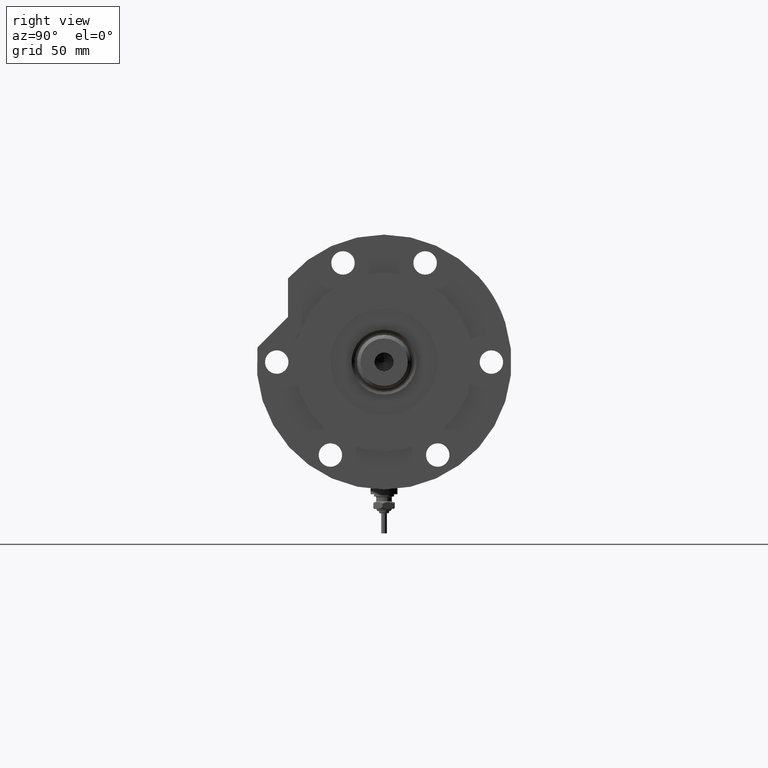
[diagram: clean part render]
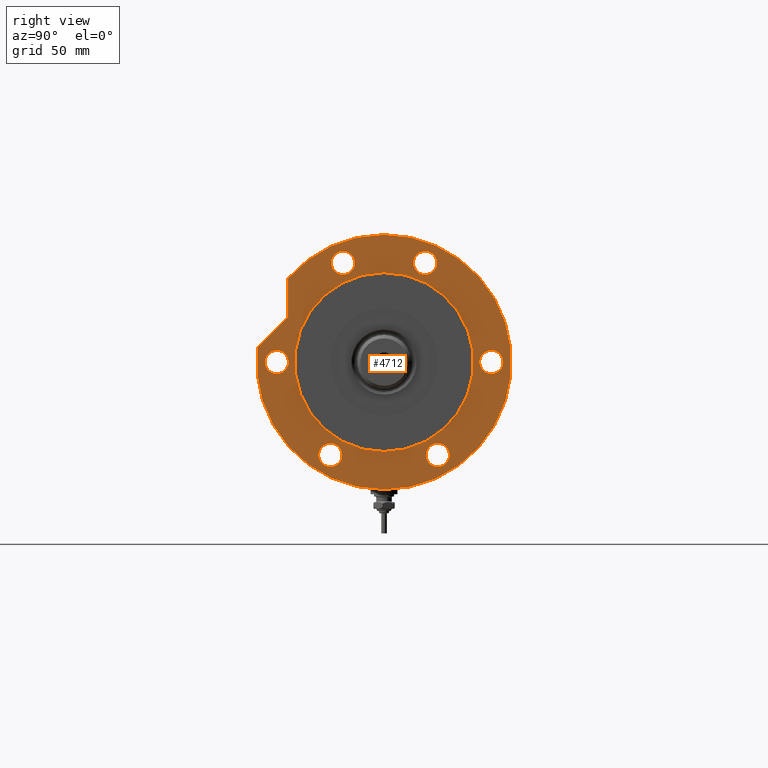
[diagram: same view with one face highlighted and labeled with its STEP entity id]
A machine part, right view. The second image highlights one B-rep face of the part: STEP entity #4712.
In plain terms, the highlighted planar face has unit normal (1, 0, -0).
Its self-contained STEP definition (entity closure, byte-faithful):
#93 = CIRCLE ( 'NONE', #1344, 5.249999999999997335 ) ;
#123 = CARTESIAN_POINT ( 'NONE',  ( 0.000000000000000000, 0.000000000000000000, 19.00000000000000000 ) ) ;
#243 = DIRECTION ( 'NONE',  ( 0.000000000000000000, 0.000000000000000000, 1.000000000000000000 ) ) ;
#247 = CIRCLE ( 'NONE', #4504, 5.249999999999997335 ) ;
#334 = EDGE_LOOP ( 'NONE', ( #5898, #2535 ) ) ;
#403 = VECTOR ( 'NONE', #4332, 999.9999999999998863 ) ;
#474 = DIRECTION ( 'NONE',  ( 1.000000000000000000, 0.000000000000000000, 0.000000000000000000 ) ) ;
#544 = ORIENTED_EDGE ( 'NONE', *, *, #6496, .T. ) ;
#575 = ORIENTED_EDGE ( 'NONE', *, *, #4375, .F. ) ;
#581 = CARTESIAN_POINT ( 'NONE',  ( 0.000000000000000000, 48.00000000000000000, 19.00000000000000000 ) ) ;
#613 = CIRCLE ( 'NONE', #5857, 40.00000000000000000 ) ;
#623 = CARTESIAN_POINT ( 'NONE',  ( 44.34621756054168173, -18.36880475352450048, 19.00000000000000000 ) ) ;
#686 = DIRECTION ( 'NONE',  ( 1.000000000000000000, 0.000000000000000000, 0.000000000000000000 ) ) ;
#712 = EDGE_CURVE ( 'NONE', #4845, #3375, #4877, .T. ) ;
#739 = CIRCLE ( 'NONE', #7449, 5.249999999999997335 ) ;
#752 = DIRECTION ( 'NONE',  ( 0.000000000000000000, 0.000000000000000000, 1.000000000000000000 ) ) ;
#827 = ORIENTED_EDGE ( 'NONE', *, *, #3716, .F. ) ;
#832 = CARTESIAN_POINT ( 'NONE',  ( 49.59621756054168173, -18.36880475352450048, 19.00000000000000000 ) ) ;
#869 = FACE_OUTER_BOUND ( 'NONE', #4097, .T. ) ;
#929 = CARTESIAN_POINT ( 'NONE',  ( 0.000000000000000000, 0.000000000000000000, 19.00000000000000000 ) ) ;
#937 = CARTESIAN_POINT ( 'NONE',  ( 44.34621756054168173, -18.36880475352450048, 19.00000000000000000 ) ) ;
#956 = ORIENTED_EDGE ( 'NONE', *, *, #7112, .F. ) ;
#963 = EDGE_CURVE ( 'NONE', #4517, #6420, #1715, .T. ) ;
#1004 = EDGE_CURVE ( 'NONE', #4122, #4089, #739, .T. ) ;
#1018 = DIRECTION ( 'NONE',  ( 1.000000000000000000, 0.000000000000000000, -0.000000000000000000 ) ) ;
#1041 = DIRECTION ( 'NONE',  ( 0.000000000000000000, 0.000000000000000000, 1.000000000000000000 ) ) ;
#1061 = DIRECTION ( 'NONE',  ( 0.000000000000000000, 0.000000000000000000, 1.000000000000000000 ) ) ;
#1080 = DIRECTION ( 'NONE',  ( 1.000000000000000000, 0.000000000000000000, 0.000000000000000000 ) ) ;
#1082 = EDGE_CURVE ( 'NONE', #6780, #5940, #6309, .T. ) ;
#1089 = DIRECTION ( 'NONE',  ( 1.000000000000000000, 0.000000000000000000, 0.000000000000000000 ) ) ;
#1220 = ORIENTED_EDGE ( 'NONE', *, *, #963, .F. ) ;
#1313 = EDGE_LOOP ( 'NONE', ( #1809, #7241 ) ) ;
#1344 = AXIS2_PLACEMENT_3D ( 'NONE', #1798, #4010, #5921 ) ;
#1412 = CARTESIAN_POINT ( 'NONE',  ( -36.31921938165294961, -24.00000000000018829, 19.00000000000000000 ) ) ;
#1432 = DIRECTION ( 'NONE',  ( 1.000000000000000000, 0.000000000000000000, 0.000000000000000000 ) ) ;
#1471 = ORIENTED_EDGE ( 'NONE', *, *, #1082, .F. ) ;
#1528 = DIRECTION ( 'NONE',  ( 0.000000000000000000, 0.000000000000000000, 1.000000000000000000 ) ) ;
#1540 = ORIENTED_EDGE ( 'NONE', *, *, #3027, .F. ) ;
#1653 = EDGE_CURVE ( 'NONE', #4089, #4122, #5718, .T. ) ;
#1686 = EDGE_CURVE ( 'NONE', #5536, #3425, #93, .T. ) ;
#1715 = CIRCLE ( 'NONE', #3798, 5.249999999999997335 ) ;
#1726 = CARTESIAN_POINT ( 'NONE',  ( 44.34621756054168173, 18.36880475352450048, 19.00000000000000000 ) ) ;
#1798 = CARTESIAN_POINT ( 'NONE',  ( 44.34621756054168173, 18.36880475352450048, 19.00000000000000000 ) ) ;
#1809 = ORIENTED_EDGE ( 'NONE', *, *, #1004, .F. ) ;
#1846 = EDGE_LOOP ( 'NONE', ( #4401, #5758 ) ) ;
#1855 = CIRCLE ( 'NONE', #4518, 5.249999999999998224 ) ;
#1861 = DIRECTION ( 'NONE',  ( 0.000000000000000000, 0.000000000000000000, 1.000000000000000000 ) ) ;
#1878 = CARTESIAN_POINT ( 'NONE',  ( 37.43945616129992970, 42.98007820311755012, 19.00000000000000000 ) ) ;
#1913 = DIRECTION ( 'NONE',  ( 0.000000000000000000, 0.000000000000000000, 1.000000000000000000 ) ) ;
#1985 = CARTESIAN_POINT ( 'NONE',  ( 40.00000000000000000, 4.898587196589413026E-15, 19.00000000000000000 ) ) ;
#2062 = ORIENTED_EDGE ( 'NONE', *, *, #7081, .F. ) ;
#2171 = FACE_BOUND ( 'NONE', #1846, .T. ) ;
#2193 = AXIS2_PLACEMENT_3D ( 'NONE', #3006, #7038, #6453 ) ;
#2255 = EDGE_LOOP ( 'NONE', ( #3801, #575 ) ) ;
#2289 = EDGE_CURVE ( 'NONE', #2383, #5976, #2311, .T. ) ;
#2311 = CIRCLE ( 'NONE', #5226, 5.249999999999998224 ) ;
#2361 = CARTESIAN_POINT ( 'NONE',  ( -5.249999999999998224, -48.00000000000000000, 19.00000000000000000 ) ) ;
#2383 = VERTEX_POINT ( 'NONE', #3302 ) ;
#2413 = DIRECTION ( 'NONE',  ( 1.000000000000000000, 0.000000000000000000, 0.000000000000000000 ) ) ;
#2435 = CARTESIAN_POINT ( 'NONE',  ( -41.56921938165294961, -24.00000000000018829, 19.00000000000000000 ) ) ;
#2462 = DIRECTION ( 'NONE',  ( 1.000000000000000000, 0.000000000000000000, 0.000000000000000000 ) ) ;
#2502 = CARTESIAN_POINT ( 'NONE',  ( 0.000000000000000000, -48.00000000000000000, 19.00000000000000000 ) ) ;
#2504 = ORIENTED_EDGE ( 'NONE', *, *, #712, .T. ) ;
#2535 = ORIENTED_EDGE ( 'NONE', *, *, #2943, .F. ) ;
#2605 = FACE_BOUND ( 'NONE', #334, .T. ) ;
#2641 = DIRECTION ( 'NONE',  ( 0.000000000000000000, 0.000000000000000000, 1.000000000000000000 ) ) ;
#2813 = CARTESIAN_POINT ( 'NONE',  ( 0.000000000000000000, 0.000000000000000000, 19.00000000000000000 ) ) ;
#2814 = CIRCLE ( 'NONE', #3935, 5.249999999999997335 ) ;
#2865 = DIRECTION ( 'NONE',  ( 0.000000000000000000, 0.000000000000000000, 1.000000000000000000 ) ) ;
#2935 = AXIS2_PLACEMENT_3D ( 'NONE', #2502, #5313, #5894 ) ;
#2940 = DIRECTION ( 'NONE',  ( 0.000000000000000000, 0.000000000000000000, 1.000000000000000000 ) ) ;
#2943 = EDGE_CURVE ( 'NONE', #3425, #5536, #247, .T. ) ;
#2958 = CIRCLE ( 'NONE', #3337, 57.00000000000000000 ) ;
#2965 = DIRECTION ( 'NONE',  ( 1.000000000000000000, 0.000000000000000000, 0.000000000000000000 ) ) ;
#3006 = CARTESIAN_POINT ( 'NONE',  ( 0.000000000000000000, 0.000000000000000000, 19.00000000000000000 ) ) ;
#3027 = EDGE_CURVE ( 'NONE', #4095, #7042, #7227, .T. ) ;
#3115 = CARTESIAN_POINT ( 'NONE',  ( -41.56921938165310593, 23.99999999999990408, 19.00000000000000000 ) ) ;
#3246 = DIRECTION ( 'NONE',  ( 0.000000000000000000, 0.000000000000000000, 1.000000000000000000 ) ) ;
#3258 = DIRECTION ( 'NONE',  ( 1.000000000000000000, 0.000000000000000000, 0.000000000000000000 ) ) ;
#3302 = CARTESIAN_POINT ( 'NONE',  ( 5.249999999999998224, -48.00000000000000000, 19.00000000000000000 ) ) ;
#3337 = AXIS2_PLACEMENT_3D ( 'NONE', #123, #1861, #2462 ) ;
#3375 = VERTEX_POINT ( 'NONE', #4085 ) ;
#3376 = DIRECTION ( 'NONE',  ( 0.000000000000000000, 0.000000000000000000, 1.000000000000000000 ) ) ;
#3391 = FACE_BOUND ( 'NONE', #2255, .T. ) ;
#3406 = AXIS2_PLACEMENT_3D ( 'NONE', #6567, #752, #2413 ) ;
#3425 = VERTEX_POINT ( 'NONE', #6947 ) ;
#3440 = AXIS2_PLACEMENT_3D ( 'NONE', #5752, #1061, #474 ) ;
#3442 = CARTESIAN_POINT ( 'NONE',  ( 0.000000000000000000, 42.98007820311755012, 19.00000000000000000 ) ) ;
#3444 = CARTESIAN_POINT ( 'NONE',  ( 39.09621756054168173, 18.36880475352450048, 19.00000000000000000 ) ) ;
#3507 = VERTEX_POINT ( 'NONE', #6409 ) ;
#3592 = DIRECTION ( 'NONE',  ( 0.000000000000000000, 0.000000000000000000, 1.000000000000000000 ) ) ;
#3657 = AXIS2_PLACEMENT_3D ( 'NONE', #2435, #3592, #686 ) ;
#3706 = EDGE_LOOP ( 'NONE', ( #3928, #1220 ) ) ;
#3716 = EDGE_CURVE ( 'NONE', #7042, #4095, #613, .T. ) ;
#3774 = CARTESIAN_POINT ( 'NONE',  ( 5.249999999999998224, 48.00000000000000000, 19.00000000000000000 ) ) ;
#3791 = ORIENTED_EDGE ( 'NONE', *, *, #6978, .T. ) ;
#3798 = AXIS2_PLACEMENT_3D ( 'NONE', #3115, #2641, #7324 ) ;
#3801 = ORIENTED_EDGE ( 'NONE', *, *, #4365, .F. ) ;
#3812 = FACE_BOUND ( 'NONE', #3706, .T. ) ;
#3928 = ORIENTED_EDGE ( 'NONE', *, *, #5182, .F. ) ;
#3935 = AXIS2_PLACEMENT_3D ( 'NONE', #623, #2940, #5273 ) ;
#3942 = PLANE ( 'NONE',  #4316 ) ;
#4010 = DIRECTION ( 'NONE',  ( 0.000000000000000000, 0.000000000000000000, 1.000000000000000000 ) ) ;
#4085 = CARTESIAN_POINT ( 'NONE',  ( 57.00000000000000000, 6.980486755139912911E-15, 19.00000000000000000 ) ) ;
#4089 = VERTEX_POINT ( 'NONE', #1412 ) ;
#4095 = VERTEX_POINT ( 'NONE', #1985 ) ;
#4097 = EDGE_LOOP ( 'NONE', ( #1471, #956, #3791, #2504, #544 ) ) ;
#4122 = VERTEX_POINT ( 'NONE', #4908 ) ;
#4316 = AXIS2_PLACEMENT_3D ( 'NONE', #2813, #1041, #7417 ) ;
#4332 = DIRECTION ( 'NONE',  ( 0.7071067811865510144, -0.7071067811865441310, 0.000000000000000000 ) ) ;
#4365 = EDGE_CURVE ( 'NONE', #5792, #5461, #6631, .T. ) ;
#4375 = EDGE_CURVE ( 'NONE', #5461, #5792, #1855, .T. ) ;
#4401 = ORIENTED_EDGE ( 'NONE', *, *, #4601, .F. ) ;
#4418 = CIRCLE ( 'NONE', #2935, 5.249999999999998224 ) ;
#4493 = FACE_BOUND ( 'NONE', #1313, .T. ) ;
#4502 = DIRECTION ( 'NONE',  ( 0.000000000000000000, 0.000000000000000000, 1.000000000000000000 ) ) ;
#4504 = AXIS2_PLACEMENT_3D ( 'NONE', #1726, #7567, #2965 ) ;
#4513 = EDGE_CURVE ( 'NONE', #5624, #6857, #2814, .T. ) ;
#4517 = VERTEX_POINT ( 'NONE', #6598 ) ;
#4516 = DIRECTION ( 'NONE',  ( 1.000000000000000000, 0.000000000000000000, 0.000000000000000000 ) ) ;
#4518 = AXIS2_PLACEMENT_3D ( 'NONE', #6313, #2865, #1089 ) ;
#4601 = EDGE_CURVE ( 'NONE', #5976, #2383, #4418, .T. ) ;
#4712 = ADVANCED_FACE ( 'NONE', ( #3391, #2605, #5072, #2171, #4493, #3812, #869, #5724 ), #3942, .T. ) ;
#4845 = VERTEX_POINT ( 'NONE', #4881 ) ;
#4849 = LINE ( 'NONE', #6050, #403 ) ;
#4854 = EDGE_LOOP ( 'NONE', ( #5324, #2062 ) ) ;
#4877 = CIRCLE ( 'NONE', #3406, 57.00000000000000000 ) ;
#4881 = CARTESIAN_POINT ( 'NONE',  ( -57.00000000000000000, 0.000000000000000000, 19.00000000000000000 ) ) ;
#4894 = CARTESIAN_POINT ( 'NONE',  ( -5.249999999999998224, 48.00000000000000000, 19.00000000000000000 ) ) ;
#4908 = CARTESIAN_POINT ( 'NONE',  ( -46.81921938165294961, -24.00000000000018829, 19.00000000000000000 ) ) ;
#5050 = CIRCLE ( 'NONE', #5544, 57.00000000000000000 ) ;
#5072 = FACE_BOUND ( 'NONE', #4854, .T. ) ;
#5154 = CARTESIAN_POINT ( 'NONE',  ( 0.000000000000000000, 0.000000000000000000, 19.00000000000000000 ) ) ;
#5182 = EDGE_CURVE ( 'NONE', #6420, #4517, #5639, .T. ) ;
#5226 = AXIS2_PLACEMENT_3D ( 'NONE', #7195, #1913, #6535 ) ;
#5273 = DIRECTION ( 'NONE',  ( 1.000000000000000000, 0.000000000000000000, 0.000000000000000000 ) ) ;
#5313 = DIRECTION ( 'NONE',  ( 0.000000000000000000, 0.000000000000000000, 1.000000000000000000 ) ) ;
#5324 = ORIENTED_EDGE ( 'NONE', *, *, #4513, .F. ) ;
#5417 = CIRCLE ( 'NONE', #6045, 5.249999999999997335 ) ;
#5461 = VERTEX_POINT ( 'NONE', #3774 ) ;
#5536 = VERTEX_POINT ( 'NONE', #3444 ) ;
#5544 = AXIS2_PLACEMENT_3D ( 'NONE', #5154, #4502, #1080 ) ;
#5624 = VERTEX_POINT ( 'NONE', #5969 ) ;
#5639 = CIRCLE ( 'NONE', #3440, 5.249999999999997335 ) ;
#5718 = CIRCLE ( 'NONE', #3657, 5.249999999999997335 ) ;
#5724 = FACE_BOUND ( 'NONE', #7284, .T. ) ;
#5752 = CARTESIAN_POINT ( 'NONE',  ( -41.56921938165310593, 23.99999999999990408, 19.00000000000000000 ) ) ;
#5758 = ORIENTED_EDGE ( 'NONE', *, *, #2289, .F. ) ;
#5783 = DIRECTION ( 'NONE',  ( 1.000000000000000000, 0.000000000000000000, 0.000000000000000000 ) ) ;
#5792 = VERTEX_POINT ( 'NONE', #4894 ) ;
#5855 = VECTOR ( 'NONE', #1018, 1000.000000000000000 ) ;
#5857 = AXIS2_PLACEMENT_3D ( 'NONE', #929, #1528, #4516 ) ;
#5894 = DIRECTION ( 'NONE',  ( 1.000000000000000000, 0.000000000000000000, 0.000000000000000000 ) ) ;
#5898 = ORIENTED_EDGE ( 'NONE', *, *, #1686, .F. ) ;
#5921 = DIRECTION ( 'NONE',  ( 1.000000000000000000, 0.000000000000000000, 0.000000000000000000 ) ) ;
#5940 = VERTEX_POINT ( 'NONE', #1878 ) ;
#5969 = CARTESIAN_POINT ( 'NONE',  ( 39.09621756054168173, -18.36880475352450048, 19.00000000000000000 ) ) ;
#5976 = VERTEX_POINT ( 'NONE', #2361 ) ;
#5983 = CARTESIAN_POINT ( 'NONE',  ( -46.81921938165310593, 23.99999999999990408, 19.00000000000000000 ) ) ;
#6045 = AXIS2_PLACEMENT_3D ( 'NONE', #937, #3246, #1432 ) ;
#6050 = CARTESIAN_POINT ( 'NONE',  ( 31.59476718220863845, 31.59476718220895108, 19.00000000000000000 ) ) ;
#6133 = AXIS2_PLACEMENT_3D ( 'NONE', #581, #3376, #5783 ) ;
#6168 = CARTESIAN_POINT ( 'NONE',  ( -41.56921938165294961, -24.00000000000018829, 19.00000000000000000 ) ) ;
#6309 = LINE ( 'NONE', #3442, #5855 ) ;
#6313 = CARTESIAN_POINT ( 'NONE',  ( 0.000000000000000000, 48.00000000000000000, 19.00000000000000000 ) ) ;
#6409 = CARTESIAN_POINT ( 'NONE',  ( 6.569366352211361004, 56.62016801220598694, 19.00000000000000000 ) ) ;
#6420 = VERTEX_POINT ( 'NONE', #5983 ) ;
#6453 = DIRECTION ( 'NONE',  ( 1.000000000000000000, 0.000000000000000000, 0.000000000000000000 ) ) ;
#6496 = EDGE_CURVE ( 'NONE', #3375, #5940, #2958, .T. ) ;
#6535 = DIRECTION ( 'NONE',  ( 1.000000000000000000, 0.000000000000000000, 0.000000000000000000 ) ) ;
#6567 = CARTESIAN_POINT ( 'NONE',  ( 0.000000000000000000, 0.000000000000000000, 19.00000000000000000 ) ) ;
#6598 = CARTESIAN_POINT ( 'NONE',  ( -36.31921938165311303, 23.99999999999990408, 19.00000000000000000 ) ) ;
#6631 = CIRCLE ( 'NONE', #6133, 5.249999999999998224 ) ;
#6780 = VERTEX_POINT ( 'NONE', #6972 ) ;
#6857 = VERTEX_POINT ( 'NONE', #832 ) ;
#6947 = CARTESIAN_POINT ( 'NONE',  ( 49.59621756054168173, 18.36880475352450048, 19.00000000000000000 ) ) ;
#6972 = CARTESIAN_POINT ( 'NONE',  ( 20.20945616129993283, 42.98007820311755012, 19.00000000000000000 ) ) ;
#6978 = EDGE_CURVE ( 'NONE', #3507, #4845, #5050, .T. ) ;
#7038 = DIRECTION ( 'NONE',  ( 0.000000000000000000, 0.000000000000000000, 1.000000000000000000 ) ) ;
#7039 = CARTESIAN_POINT ( 'NONE',  ( -40.00000000000000000, 0.000000000000000000, 19.00000000000000000 ) ) ;
#7042 = VERTEX_POINT ( 'NONE', #7039 ) ;
#7081 = EDGE_CURVE ( 'NONE', #6857, #5624, #5417, .T. ) ;
#7112 = EDGE_CURVE ( 'NONE', #3507, #6780, #4849, .T. ) ;
#7195 = CARTESIAN_POINT ( 'NONE',  ( 0.000000000000000000, -48.00000000000000000, 19.00000000000000000 ) ) ;
#7227 = CIRCLE ( 'NONE', #2193, 40.00000000000000000 ) ;
#7241 = ORIENTED_EDGE ( 'NONE', *, *, #1653, .F. ) ;
#7284 = EDGE_LOOP ( 'NONE', ( #827, #1540 ) ) ;
#7324 = DIRECTION ( 'NONE',  ( 1.000000000000000000, 0.000000000000000000, 0.000000000000000000 ) ) ;
#7417 = DIRECTION ( 'NONE',  ( 1.000000000000000000, 0.000000000000000000, -0.000000000000000000 ) ) ;
#7449 = AXIS2_PLACEMENT_3D ( 'NONE', #6168, #243, #3258 ) ;
#7567 = DIRECTION ( 'NONE',  ( 0.000000000000000000, 0.000000000000000000, 1.000000000000000000 ) ) ;